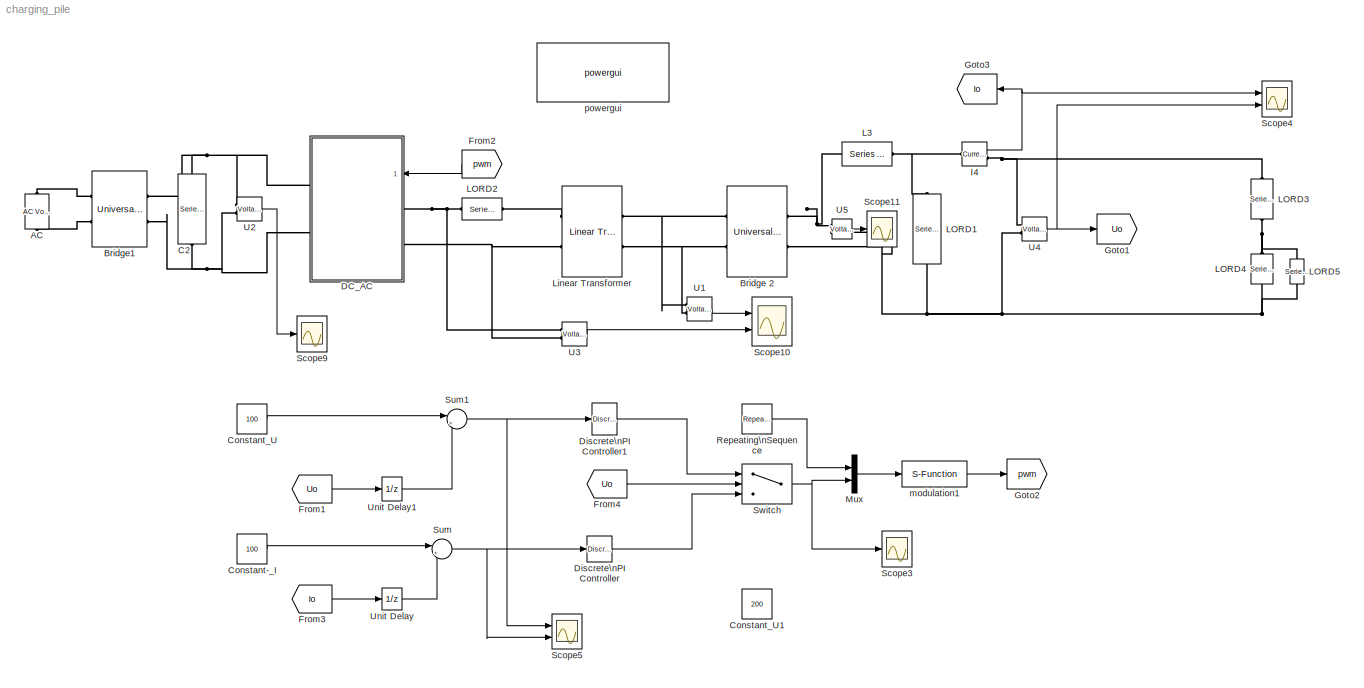
MODEL charging_pile
KIND model
BLOCK [Reference]  Bridge 2  REF=powerlib/Power\nElectronics/Universal Bridge
  Arms = 2
  Device = Diodes
  DialogController = POWERSYS.PowerSysDialog
  ForwardVoltage = 0
  ForwardVoltages = [  0  0  ]
  FunctionWithSeparateData = off
  GTOparameters = [ 10e-6 , 20e-6 ]
  GeneratePreprocessorConditionals = off
  IGBTparameters = [ 1e-6 , 2e-6 ]
  Lon = 0
  Measurements = None
  Measurements_2 = None
  Ports = [0, 0, 0, 0, 0, 2, 2]
  RTWMemSecDataConstants = Inherit from model
  RTWMemSecDataInternal = Inherit from model
  RTWMemSecDataParameters = Inherit from model
  RTWMemSecFuncExecute = Inherit from model
  RTWMemSecFuncInitTerm = Inherit from model
  Ron = 1e-3
  SID = 272
  ShowPortLabels = FromPortIcon
  SnubberCapacitance = 1e-5
  SnubberResistance = 5
  SourceBlock = powerlib/Power\nElectronics/Universal Bridge
  SourceType = Universal Bridge
  SystemSampleTime = -1
  converterType = Rectifier
BLOCK [Reference]  Bridge1  REF=powerlib/Power\nElectronics/Universal Bridge
  Arms = 2
  Device = Diodes
  DialogController = POWERSYS.PowerSysDialog
  ForwardVoltage = 0
  ForwardVoltages = [  0  0  ]
  FunctionWithSeparateData = off
  GTOparameters = [ 10e-6 , 20e-6 ]
  GeneratePreprocessorConditionals = off
  IGBTparameters = [ 1e-6 , 2e-6 ]
  Lon = 0
  Measurements = None
  Measurements_2 = None
  Ports = [0, 0, 0, 0, 0, 2, 2]
  RTWMemSecDataConstants = Inherit from model
  RTWMemSecDataInternal = Inherit from model
  RTWMemSecDataParameters = Inherit from model
  RTWMemSecFuncExecute = Inherit from model
  RTWMemSecFuncInitTerm = Inherit from model
  Ron = 1e-3
  SID = 757
  ShowPortLabels = FromPortIcon
  SnubberCapacitance = 1e-5
  SnubberResistance = 5
  SourceBlock = powerlib/Power\nElectronics/Universal Bridge
  SourceType = Universal Bridge
  SystemSampleTime = -1
  converterType = Rectifier
BLOCK [Reference] AC   REF=powerlib/Electrical\nSources/AC Voltage Source
  Amplitude = 311
  DialogController = POWERSYS.PowerSysDialog
  Frequency = 50
  FunctionWithSeparateData = off
  GeneratePreprocessorConditionals = off
  Measurements = None
  Phase = 0
  Ports = [0, 0, 0, 0, 0, 1, 1]
  RTWMemSecDataConstants = Inherit from model
  RTWMemSecDataInternal = Inherit from model
  RTWMemSecDataParameters = Inherit from model
  RTWMemSecFuncExecute = Inherit from model
  RTWMemSecFuncInitTerm = Inherit from model
  SID = 758
  SampleTime = 0
  ShowPortLabels = FromPortIcon
  SourceBlock = powerlib/Electrical\nSources/AC Voltage Source
  SourceType = AC Voltage Source
  SystemSampleTime = -1
BLOCK [Reference] C2  REF=powerlib/Elements/Series RLC Branch
  BranchType = C
  Capacitance = 20000e-6
  DialogController = POWERSYS.PowerSysDialog
  Inductance = 1e-3
  InitialCurrent = 0
  InitialVoltage = 0
  LConnTagsString = __new0
  LeftPortType = p1
  Measurements = None
  PhysicalDomain = powersysdomain
  Ports = [0, 0, 0, 0, 0, 1, 1]
  RConnTagsString = __new0
  Resistance = 0.001
  RightPortType = p1
  SID = 437
  SetiL0 = off
  Setx0 = on
  SourceBlock = powerlib/Elements/Series RLC Branch
  SourceType = Series RLC Branch
  SubClassName = unknown
BLOCK [Constant] Constant-_I
  SID = 672
  Value = 100
BLOCK [Constant] Constant_U
  SID = 529
  Value = 100
BLOCK [Constant] Constant_U1
  SID = 879
  Value = 200
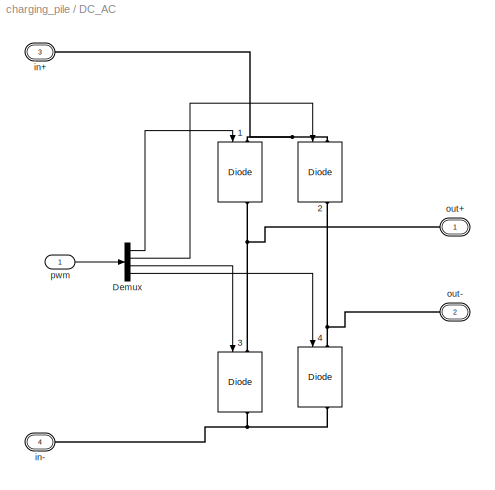
BLOCK [SubSystem] DC_AC
  FunctionWithSeparateData = off
  MaskHideContents = off
  MinAlgLoopOccurrences = off
  Opaque = off
  Ports = [1, 0, 0, 0, 0, 2, 2]
  PropExecContextOutsideSubsystem = off
  RTWSystemCode = Auto
  RequestExecContextInheritance = off
  SID = 773
BLOCK [Reference] DC_AC/1  REF=powerlib/Power\nElectronics/IGBT//Diode
  Cs = 0.1e-6
  DialogController = POWERSYS.PowerSysDialog
  FunctionWithSeparateData = off
  GeneratePreprocessorConditionals = off
  Measurements = on
  Ports = [1, 1, 0, 0, 0, 1, 1]
  RTWMemSecDataConstants = Inherit from model
  RTWMemSecDataInternal = Inherit from model
  RTWMemSecDataParameters = Inherit from model
  RTWMemSecFuncExecute = Inherit from model
  RTWMemSecFuncInitTerm = Inherit from model
  Ron = 1e-3
  Rs = 1e4
  SID = 394
  ShowPortLabels = FromPortIcon
  SourceBlock = powerlib/Power\nElectronics/IGBT//Diode
  SourceType = IGBT/Diode
  SystemSampleTime = -1
BLOCK [Reference] DC_AC/2  REF=powerlib/Power\nElectronics/IGBT//Diode
  Cs = 100e-9
  DialogController = POWERSYS.PowerSysDialog
  FunctionWithSeparateData = off
  GeneratePreprocessorConditionals = off
  Measurements = on
  Ports = [1, 1, 0, 0, 0, 1, 1]
  RTWMemSecDataConstants = Inherit from model
  RTWMemSecDataInternal = Inherit from model
  RTWMemSecDataParameters = Inherit from model
  RTWMemSecFuncExecute = Inherit from model
  RTWMemSecFuncInitTerm = Inherit from model
  Ron = 1e-3
  Rs = 1e4
  SID = 395
  ShowPortLabels = FromPortIcon
  SourceBlock = powerlib/Power\nElectronics/IGBT//Diode
  SourceType = IGBT/Diode
  SystemSampleTime = -1
BLOCK [Reference] DC_AC/3  REF=powerlib/Power\nElectronics/IGBT//Diode
  Cs = 100e-9
  DialogController = POWERSYS.PowerSysDialog
  FunctionWithSeparateData = off
  GeneratePreprocessorConditionals = off
  Measurements = on
  Ports = [1, 1, 0, 0, 0, 1, 1]
  RTWMemSecDataConstants = Inherit from model
  RTWMemSecDataInternal = Inherit from model
  RTWMemSecDataParameters = Inherit from model
  RTWMemSecFuncExecute = Inherit from model
  RTWMemSecFuncInitTerm = Inherit from model
  Ron = 1e-3
  Rs = 1e4
  SID = 396
  ShowPortLabels = FromPortIcon
  SourceBlock = powerlib/Power\nElectronics/IGBT//Diode
  SourceType = IGBT/Diode
  SystemSampleTime = -1
BLOCK [Reference] DC_AC/4  REF=powerlib/Power\nElectronics/IGBT//Diode
  Cs = 100e-9
  DialogController = POWERSYS.PowerSysDialog
  FunctionWithSeparateData = off
  GeneratePreprocessorConditionals = off
  Measurements = on
  Ports = [1, 1, 0, 0, 0, 1, 1]
  RTWMemSecDataConstants = Inherit from model
  RTWMemSecDataInternal = Inherit from model
  RTWMemSecDataParameters = Inherit from model
  RTWMemSecFuncExecute = Inherit from model
  RTWMemSecFuncInitTerm = Inherit from model
  Ron = 1e-3
  Rs = 1e4
  SID = 397
  ShowPortLabels = FromPortIcon
  SourceBlock = powerlib/Power\nElectronics/IGBT//Diode
  SourceType = IGBT/Diode
  SystemSampleTime = -1
BLOCK [Demux] DC_AC/Demux
  DisplayOption = bar
  Ports = [1, 4]
  SID = 786
BLOCK [PMIOPort] DC_AC/in+
  Port = 3
  SID = 817
  Side = Right
  Tag = PMCPort
BLOCK [PMIOPort] DC_AC/in-
  Port = 4
  SID = 818
  Side = Right
  Tag = PMCPort
BLOCK [PMIOPort] DC_AC/out+
  Port = 1
  SID = 814
  Side = Left
  Tag = PMCPort
BLOCK [PMIOPort] DC_AC/out-
  Port = 2
  SID = 816
  Side = Left
  Tag = PMCPort
BLOCK [Inport] DC_AC/pwm
  IconDisplay = Port number
  SID = 820
BLOCK [Reference] Discrete\nPI Controller  REF=powerlib_extras/Discrete \nControl Blocks/Discrete\nPI Controller
  DialogController = POWERSYS.PowerSysDialog
  FunctionWithSeparateData = off
  GeneratePreprocessorConditionals = off
  Init = 100
  Ki = 100
  Kp = 1000
  Par_Limits = [2700 100]
  Ports = [1, 1]
  RTWMemSecDataConstants = Inherit from model
  RTWMemSecDataInternal = Inherit from model
  RTWMemSecDataParameters = Inherit from model
  RTWMemSecFuncExecute = Inherit from model
  RTWMemSecFuncInitTerm = Inherit from model
  SID = 765
  ShowPortLabels = FromPortIcon
  SourceBlock = powerlib_extras/Discrete \nControl Blocks/Discrete\nPI Controller
  SourceType = Discrete PI Controller
  SystemSampleTime = -1
  Ts = 2e-6
BLOCK [Reference] Discrete\nPI Controller1  REF=powerlib_extras/Discrete \nControl Blocks/Discrete\nPI Controller
  DialogController = POWERSYS.PowerSysDialog
  FunctionWithSeparateData = off
  GeneratePreprocessorConditionals = off
  Init = 100
  Ki = 100
  Kp = 1000
  Par_Limits = [2700 100]
  Ports = [1, 1]
  RTWMemSecDataConstants = Inherit from model
  RTWMemSecDataInternal = Inherit from model
  RTWMemSecDataParameters = Inherit from model
  RTWMemSecFuncExecute = Inherit from model
  RTWMemSecFuncInitTerm = Inherit from model
  SID = 767
  ShowPortLabels = FromPortIcon
  SourceBlock = powerlib_extras/Discrete \nControl Blocks/Discrete\nPI Controller
  SourceType = Discrete PI Controller
  SystemSampleTime = -1
  Ts = 2e-6
BLOCK [From] From1
  GotoTag = Uo
  SID = 500
  TagVisibility = global
BLOCK [From] From2
  GotoTag = pwm
  IconDisplay = Tag and signal name
  SID = 735
  TagVisibility = global
BLOCK [From] From3
  GotoTag = Io
  SID = 483
  TagVisibility = global
BLOCK [From] From4
  GotoTag = Uo
  SID = 826
  TagVisibility = global
BLOCK [Goto] Goto1
  GotoTag = Uo
  SID = 444
  TagVisibility = global
BLOCK [Goto] Goto2
  GotoTag = pwm
  SID = 730
  TagVisibility = global
BLOCK [Goto] Goto3
  GotoTag = Io
  SID = 482
  TagVisibility = global
BLOCK [Reference] I4  REF=powerlib/Measurements/Current Measurement
  DialogController = POWERSYS.PowerSysDialog
  FunctionWithSeparateData = off
  GeneratePreprocessorConditionals = off
  OutputType = Complex
  PSBequivalent = 0
  PhasorSimulation = off
  Ports = [0, 1, 0, 0, 0, 1, 1]
  RTWMemSecDataConstants = Inherit from model
  RTWMemSecDataInternal = Inherit from model
  RTWMemSecDataParameters = Inherit from model
  RTWMemSecFuncExecute = Inherit from model
  RTWMemSecFuncInitTerm = Inherit from model
  SID = 275
  ShowPortLabels = FromPortIcon
  SourceBlock = powerlib/Measurements/Current Measurement
  SourceType = Current Measurement
  SystemSampleTime = -1
BLOCK [Reference] L3  REF=powerlib/Elements/Series RLC Branch
  BranchType = L
  Capacitance = 4000e-6
  DialogController = POWERSYS.PowerSysDialog
  Inductance = 1e-3
  InitialCurrent = 0
  InitialVoltage = 0
  LConnTagsString = __new0
  LeftPortType = p1
  Measurements = None
  PhysicalDomain = powersysdomain
  Ports = [0, 0, 0, 0, 0, 1, 1]
  RConnTagsString = __new0
  Resistance = 1
  RightPortType = p1
  SID = 434
  SetiL0 = off
  Setx0 = off
  SourceBlock = powerlib/Elements/Series RLC Branch
  SourceType = Series RLC Branch
  SubClassName = unknown
BLOCK [Reference] LORD1  REF=powerlib/Elements/Series RLC Branch
  BranchType = C
  Capacitance = 25e-6
  DialogController = POWERSYS.PowerSysDialog
  Inductance = 1e-3
  InitialCurrent = 0
  InitialVoltage = 0
  LConnTagsString = __new0
  LeftPortType = p1
  Measurements = None
  PhysicalDomain = powersysdomain
  Ports = [0, 0, 0, 0, 0, 1, 1]
  RConnTagsString = __new0
  Resistance = 0.01
  RightPortType = p1
  SID = 501
  SetiL0 = off
  Setx0 = off
  SourceBlock = powerlib/Elements/Series RLC Branch
  SourceType = Series RLC Branch
  SubClassName = unknown
BLOCK [Reference] LORD2  REF=powerlib/Elements/Series RLC Branch
  BranchType = C
  Capacitance = 60e-6
  DialogController = POWERSYS.PowerSysDialog
  Inductance = 1e-3
  InitialCurrent = 0
  InitialVoltage = 0
  LConnTagsString = __new0
  LeftPortType = p1
  Measurements = None
  PhysicalDomain = powersysdomain
  Ports = [0, 0, 0, 0, 0, 1, 1]
  RConnTagsString = __new0
  Resistance = 0.01
  RightPortType = p1
  SID = 740
  SetiL0 = off
  Setx0 = off
  SourceBlock = powerlib/Elements/Series RLC Branch
  SourceType = Series RLC Branch
  SubClassName = unknown
BLOCK [Reference] LORD3  REF=powerlib/Elements/Series RLC Branch
  BranchType = R
  Capacitance = 50000e-6
  DialogController = POWERSYS.PowerSysDialog
  Inductance = 1e-3
  InitialCurrent = 0
  InitialVoltage = 0
  LConnTagsString = __new0
  LeftPortType = p1
  Measurements = None
  PhysicalDomain = powersysdomain
  Ports = [0, 0, 0, 0, 0, 1, 1]
  RConnTagsString = __new0
  Resistance = 0.1
  RightPortType = p1
  SID = 821
  SetiL0 = off
  Setx0 = off
  SourceBlock = powerlib/Elements/Series RLC Branch
  SourceType = Series RLC Branch
  SubClassName = unknown
BLOCK [Reference] LORD4  REF=powerlib/Elements/Series RLC Branch
  BranchType = C
  Capacitance = 0.1
  DialogController = POWERSYS.PowerSysDialog
  Inductance = 1e-3
  InitialCurrent = 0
  InitialVoltage = 50
  LConnTagsString = __new0
  LeftPortType = p1
  Measurements = None
  PhysicalDomain = powersysdomain
  Ports = [0, 0, 0, 0, 0, 1, 1]
  RConnTagsString = __new0
  Resistance = 0.1
  RightPortType = p1
  SID = 841
  SetiL0 = off
  Setx0 = off
  SourceBlock = powerlib/Elements/Series RLC Branch
  SourceType = Series RLC Branch
  SubClassName = unknown
BLOCK [Reference] LORD5  REF=powerlib/Elements/Series RLC Branch
  BranchType = R
  Capacitance = 50000e-6
  DialogController = POWERSYS.PowerSysDialog
  Inductance = 1e-3
  InitialCurrent = 0
  InitialVoltage = 0
  LConnTagsString = __new0
  LeftPortType = p1
  Measurements = None
  PhysicalDomain = powersysdomain
  Ports = [0, 0, 0, 0, 0, 1, 1]
  RConnTagsString = __new0
  Resistance = 25
  RightPortType = p1
  SID = 859
  SetiL0 = off
  Setx0 = off
  SourceBlock = powerlib/Elements/Series RLC Branch
  SourceType = Series RLC Branch
  SubClassName = unknown
BLOCK [Reference] Linear Transformer  REF=powerlib/Elements/Linear Transformer
  DataType = on
  DialogController = POWERSYS.PowerSysDialog
  LConnTagsString = a|b
  LeftPortType = p1
  Measurements = None
  NominalPower = [ 15e3 20000 ]
  PhysicalDomain = powersysdomain
  Ports = [0, 0, 0, 0, 0, 2, 2]
  RConnTagsString = A|B
  RightPortType = p1
  RmLm = [1612 0.012828]
  SID = 823
  SourceBlock = powerlib/Elements/Linear Transformer
  SourceType = Linear Transformer
  SubClassName = unknown
  ThreeWindings = off
  UNITS = SI
  winding1 = [311 0.0064481 2.0525e-006]
  winding2 = [173 0.0019953 6.3511e-007]
  winding3 = [3.15e+005 6615 2.1056]
BLOCK [Mux] Mux
  DisplayOption = bar
  Inputs = 2
  Ports = [2, 1]
  SID = 871
BLOCK [Reference] Repeating\nSequence  REF=simulink/Sources/Repeating\nSequence
  FunctionWithSeparateData = off
  GeneratePreprocessorConditionals = off
  Ports = [0, 1]
  RTWMemSecDataConstants = Inherit from model
  RTWMemSecDataInternal = Inherit from model
  RTWMemSecDataParameters = Inherit from model
  RTWMemSecFuncExecute = Inherit from model
  RTWMemSecFuncInitTerm = Inherit from model
  SID = 869
  ShowPortLabels = FromPortIcon
  SourceBlock = simulink/Sources/Repeating\nSequence
  SourceType = Repeating table
  SystemSampleTime = -1
  rep_seq_t = [0 1/1e4]
  rep_seq_y = [0 6000]
BLOCK [Scope] Scope10
  DataFormat = StructureWithTime
  Floating = off
  LimitDataPoints = off
  MaxDataPoints = 10000000
  NumInputPorts = 2
  Ports = [2]
  SID = 858
  SampleTime = 0
  SaveName = ScopeData9
  TimeRange = 0.2
  YMax = 400~5
  YMin = -400~-5
  ZoomMode = xonly
BLOCK [Scope] Scope11
  DataFormat = StructureWithTime
  Floating = off
  LimitDataPoints = off
  MaxDataPoints = 10000000
  NumInputPorts = 1
  Ports = [1]
  SID = 861
  SampleTime = 0
  SaveName = ScopeData10
  TimeRange = 0.04000000000000001
  YMax = 700
  YMin = -700
  ZoomMode = xonly
BLOCK [Scope] Scope3
  DataFormat = StructureWithTime
  Floating = off
  LimitDataPoints = off
  MaxDataPoints = 10000000
  NumInputPorts = 1
  Ports = [1]
  SID = 882
  SampleTime = 0
  SaveName = ScopeData2
  TimeRange = 0.04000000000000001
  YMax = 700
  YMin = -700
  ZoomMode = yonly
BLOCK [Scope] Scope4
  DataFormat = StructureWithTime
  Floating = off
  LimitDataPoints = off
  MaxDataPoints = 10000000
  NumInputPorts = 2
  Ports = [2]
  SID = 281
  SampleTime = 0
  SaveName = ScopeData3
  TimeRange = 0.04000000000000001
  YMax = 100~101
  YMin = 0~86
  ZoomMode = yonly
BLOCK [Scope] Scope5
  DataFormat = StructureWithTime
  Floating = off
  LimitDataPoints = off
  MaxDataPoints = 10000000
  NumInputPorts = 2
  Ports = [2]
  SID = 769
  SampleTime = 0
  SaveName = ScopeData4
  TimeRange = 0.04000000000000001
  YMax = 30~100
  YMin = -2.5~30
  ZoomMode = yonly
BLOCK [Scope] Scope9
  DataFormat = StructureWithTime
  Floating = off
  LimitDataPoints = off
  MaxDataPoints = 10000000
  NumInputPorts = 1
  Ports = [1]
  SID = 856
  SampleTime = 0
  SaveName = ScopeData8
  TimeRange = 0.04000000000000001
  YMax = 312.5
  YMin = 267.5
  ZoomMode = yonly
BLOCK [Sum] Sum
  IconShape = round
  InputSameDT = off
  Inputs = |+-
  OutDataTypeStr = Inherit: Inherit via internal rule
  Ports = [2, 1]
  SID = 442
  SaturateOnIntegerOverflow = off
BLOCK [Sum] Sum1
  IconShape = round
  InputSameDT = off
  Inputs = |+-
  OutDataTypeStr = Inherit: Inherit via internal rule
  Ports = [2, 1]
  SID = 530
  SaturateOnIntegerOverflow = off
BLOCK [Switch] Switch
  InputSameDT = off
  SID = 825
  SaturateOnIntegerOverflow = off
  Threshold = 100
BLOCK [Reference] U1  REF=powerlib/Measurements/Voltage Measurement
  DialogController = POWERSYS.PowerSysDialog
  FunctionWithSeparateData = off
  GeneratePreprocessorConditionals = off
  OutputType = Complex
  PSBequivalent = 0
  PhasorSimulation = off
  Ports = [0, 1, 0, 0, 0, 2]
  RTWMemSecDataConstants = Inherit from model
  RTWMemSecDataInternal = Inherit from model
  RTWMemSecDataParameters = Inherit from model
  RTWMemSecFuncExecute = Inherit from model
  RTWMemSecFuncInitTerm = Inherit from model
  SID = 878
  ShowPortLabels = FromPortIcon
  SourceBlock = powerlib/Measurements/Voltage Measurement
  SourceType = Voltage Measurement
  SystemSampleTime = -1
BLOCK [Reference] U2  REF=powerlib/Measurements/Voltage Measurement
  DialogController = POWERSYS.PowerSysDialog
  FunctionWithSeparateData = off
  GeneratePreprocessorConditionals = off
  OutputType = Complex
  PSBequivalent = 0
  PhasorSimulation = off
  Ports = [0, 1, 0, 0, 0, 2]
  RTWMemSecDataConstants = Inherit from model
  RTWMemSecDataInternal = Inherit from model
  RTWMemSecDataParameters = Inherit from model
  RTWMemSecFuncExecute = Inherit from model
  RTWMemSecFuncInitTerm = Inherit from model
  SID = 854
  ShowPortLabels = FromPortIcon
  SourceBlock = powerlib/Measurements/Voltage Measurement
  SourceType = Voltage Measurement
  SystemSampleTime = -1
BLOCK [Reference] U3  REF=powerlib/Measurements/Voltage Measurement
  DialogController = POWERSYS.PowerSysDialog
  FunctionWithSeparateData = off
  GeneratePreprocessorConditionals = off
  OutputType = Complex
  PSBequivalent = 0
  PhasorSimulation = off
  Ports = [0, 1, 0, 0, 0, 2]
  RTWMemSecDataConstants = Inherit from model
  RTWMemSecDataInternal = Inherit from model
  RTWMemSecDataParameters = Inherit from model
  RTWMemSecFuncExecute = Inherit from model
  RTWMemSecFuncInitTerm = Inherit from model
  SID = 857
  ShowPortLabels = FromPortIcon
  SourceBlock = powerlib/Measurements/Voltage Measurement
  SourceType = Voltage Measurement
  SystemSampleTime = -1
BLOCK [Reference] U4  REF=powerlib/Measurements/Voltage Measurement
  DialogController = POWERSYS.PowerSysDialog
  FunctionWithSeparateData = off
  GeneratePreprocessorConditionals = off
  OutputType = Complex
  PSBequivalent = 0
  PhasorSimulation = off
  Ports = [0, 1, 0, 0, 0, 2]
  RTWMemSecDataConstants = Inherit from model
  RTWMemSecDataInternal = Inherit from model
  RTWMemSecDataParameters = Inherit from model
  RTWMemSecFuncExecute = Inherit from model
  RTWMemSecFuncInitTerm = Inherit from model
  SID = 276
  ShowPortLabels = FromPortIcon
  SourceBlock = powerlib/Measurements/Voltage Measurement
  SourceType = Voltage Measurement
  SystemSampleTime = -1
BLOCK [Reference] U5  REF=powerlib/Measurements/Voltage Measurement
  DialogController = POWERSYS.PowerSysDialog
  FunctionWithSeparateData = off
  GeneratePreprocessorConditionals = off
  OutputType = Complex
  PSBequivalent = 0
  PhasorSimulation = off
  Ports = [0, 1, 0, 0, 0, 2]
  RTWMemSecDataConstants = Inherit from model
  RTWMemSecDataInternal = Inherit from model
  RTWMemSecDataParameters = Inherit from model
  RTWMemSecFuncExecute = Inherit from model
  RTWMemSecFuncInitTerm = Inherit from model
  SID = 860
  ShowPortLabels = FromPortIcon
  SourceBlock = powerlib/Measurements/Voltage Measurement
  SourceType = Voltage Measurement
  SystemSampleTime = -1
BLOCK [UnitDelay] Unit Delay
  InputProcessing = Elements as channels (sample based)
  SID = 771
  SampleTime = -1
BLOCK [UnitDelay] Unit Delay1
  InputProcessing = Elements as channels (sample based)
  SID = 772
  SampleTime = -1
BLOCK [S-Function] modulation1
  EnableBusSupport = off
  FunctionName = PWMnew
  Ports = [1, 1]
  SID = 870
BLOCK [Reference] powergui  REF=powerlib/powergui
  DisableRonSwitches = off
  DisableSnubberDevices = off
  DisableVfSwitches = off
  DisplayEquations = off
  DisplayStyle = 1
  EnableUseOfTLC = off
  Frange = [0:2:500]
  FreqAxis = on
  FunctionMessages = off
  FunctionWithSeparateData = off
  GeneratePreprocessorConditionals = off
  HookPort = off
  Interpol = off
  MaxFrequency = 1000
  Ports = []
  Priority = 1
  RTWMemSecDataConstants = Inherit from model
  RTWMemSecDataInternal = Inherit from model
  RTWMemSecDataParameters = Inherit from model
  RTWMemSecFuncExecute = Inherit from model
  RTWMemSecFuncInitTerm = Inherit from model
  ResistiveCurrentMeasurement = off
  RestoreLinks = warning
  RmsSteady = 1
  SID = 253
  SPID = off
  SampleTime = 2e-6
  ShowGrid = off
  ShowPortLabels = FromPortIcon
  SourceBlock = powerlib/powergui
  SourceType = PSB option menu block
  StartTime = 0.04
  SwTol = 0
  SystemSampleTime = -1
  Ts = 0
  UserData = DataTag0
  UserDataPersistent = on
  Xlog = on
  Ylog = off
  ZoomFFT = off
  cycles = 2
  display = off
  echomessages = off
  frequency = 60
  frequencyindice = 0
  frequencyindicesteady = 1
  fundamental = 50
  methode = off
  save = off
  structure = ScopeData2
  variable = ZData
  x0status = blocks
LINE Constant-_I:1 -> Sum:1
LINE Constant_U:1 -> Sum1:1
LINE DC_AC/Demux:1 -> DC_AC/1:1
LINE DC_AC/Demux:2 -> DC_AC/2:1
LINE DC_AC/Demux:3 -> DC_AC/3:1
LINE DC_AC/Demux:4 -> DC_AC/4:1
LINE DC_AC/pwm:1 -> DC_AC/Demux:1
LINE Discrete\nPI Controller1:1 -> Switch:1
LINE Discrete\nPI Controller:1 -> Switch:3
LINE From1:1 -> Unit Delay1:1
LINE From2:1 -> DC_AC:1
LINE From3:1 -> Unit Delay:1
LINE From4:1 -> Switch:2
NET I4:1 -> Goto3:1, Scope4:1
LINE Mux:1 -> modulation1:1
LINE Repeating\nSequence:1 -> Mux:1
NET Sum1:1 -> Discrete\nPI Controller1:1, Scope5:1
NET Sum:1 -> Discrete\nPI Controller:1, Scope5:2
NET Switch:1 -> Mux:2, Scope3:1
LINE U1:1 -> Scope10:1
LINE U2:1 -> Scope9:1
LINE U3:1 -> Scope10:2
NET U4:1 -> Goto1:1, Scope4:2
LINE U5:1 -> Scope11:1
LINE Unit Delay1:1 -> Sum1:2
LINE Unit Delay:1 -> Sum:2
LINE modulation1:1 -> Goto2:1
PNET net1:  Bridge 2:LConn1 -- Linear Transformer:RConn1 -- U1:LConn1
PNET net2:  Bridge 2:LConn2 -- Linear Transformer:RConn2 -- U1:LConn2
PNET net3:  Bridge 2:RConn1 -- L3:RConn1 -- U5:LConn1
PNET net4:  Bridge 2:RConn2 -- LORD1:RConn1 -- LORD4:RConn1 -- LORD5:RConn1 -- U4:LConn2 -- U5:LConn2
PLINE  Bridge1:LConn1 -- AC :RConn1
PLINE  Bridge1:LConn2 -- AC :LConn1
PNET net5:  Bridge1:RConn1 -- C2:LConn1 -- DC_AC:RConn1 -- U2:LConn1
PNET net6:  Bridge1:RConn2 -- C2:RConn1 -- DC_AC:RConn2 -- U2:LConn2
PNET net7: DC_AC/1:LConn1 -- DC_AC/2:LConn1 -- DC_AC/in+:RConn1
PNET net8: DC_AC/1:RConn1 -- DC_AC/3:LConn1 -- DC_AC/out+:RConn1
PNET net9: DC_AC/2:RConn1 -- DC_AC/4:LConn1 -- DC_AC/out-:RConn1
PNET net10: DC_AC/3:RConn1 -- DC_AC/4:RConn1 -- DC_AC/in-:RConn1
PNET net11: DC_AC:LConn1 -- LORD2:LConn1 -- U3:LConn1
PNET net12: DC_AC:LConn2 -- Linear Transformer:LConn2 -- U3:LConn2
PNET net13: I4:LConn1 -- L3:LConn1 -- LORD1:LConn1
PNET net14: I4:RConn1 -- LORD3:LConn1 -- U4:LConn1
PLINE LORD2:RConn1 -- Linear Transformer:LConn1
PNET net15: LORD3:RConn1 -- LORD4:LConn1 -- LORD5:LConn1
note: NET lines group one-source signal fan-out (src -> all destinations, sorted); 1:1 wires keep LINE; PNET lines group multi-terminal physical nets as a canonical sorted terminal list (undirected conserving connections); 2-terminal nets keep the pairwise PLINE form
